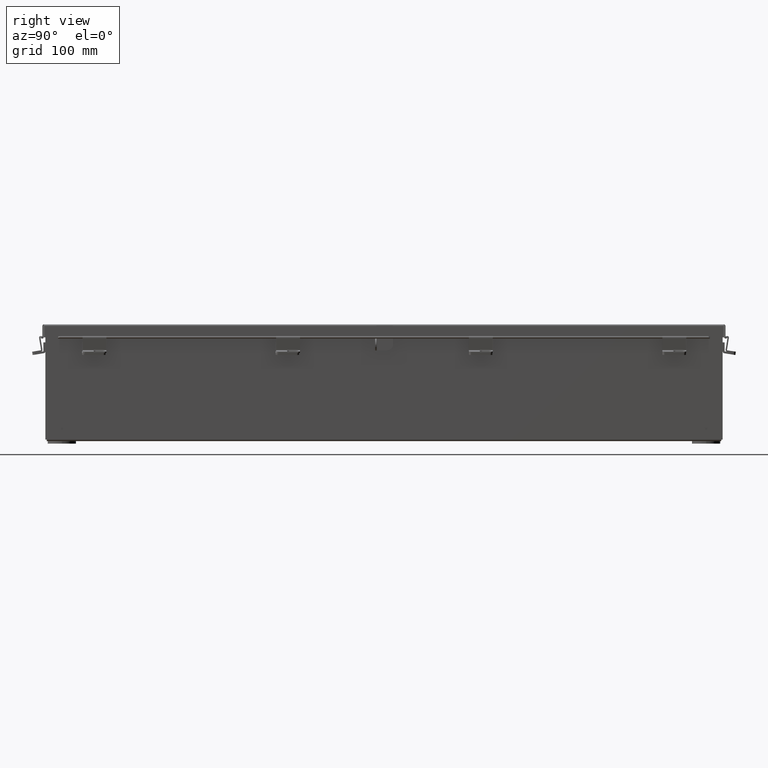
[diagram: clean part render]
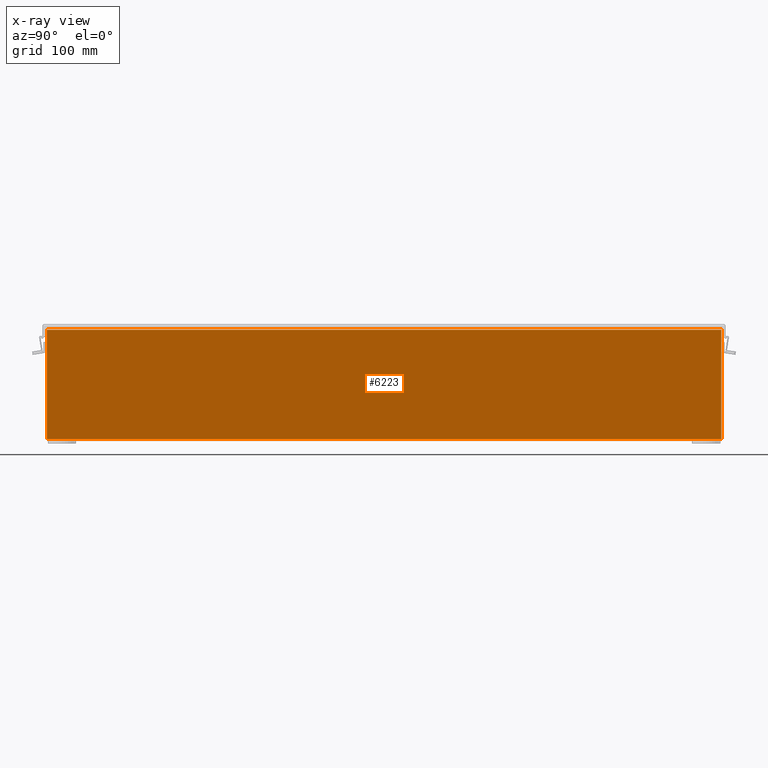
[diagram: x-ray — body ghosted, one internal face saturated and labeled with its STEP entity id]
A machine part, right view, then the same camera in x-ray: the body is ghosted and one INTERNAL B-rep face — a face not visible from any outside direction — is saturated and labeled: STEP entity #6223.
In plain terms, the highlighted planar face has unit normal (-1, 0, 0).
Its self-contained STEP definition (entity closure, byte-faithful):
#9 = LINE ( 'NONE', #21692, #17502 ) ;
#709 = CARTESIAN_POINT ( 'NONE',  ( 2.925300000000020900, -17.92530000000000000, 5.837599999999999200 ) ) ;
#749 = VECTOR ( 'NONE', #16234, 39.37007874015748100 ) ;
#1488 = ORIENTED_EDGE ( 'NONE', *, *, #14843, .F. ) ;
#2618 = DIRECTION ( 'NONE',  ( 3.455316574900958600E-015, 0.0000000000000000000, 1.000000000000000000 ) ) ;
#2880 = LINE ( 'NONE', #27496, #749 ) ;
#2903 = LINE ( 'NONE', #3478, #26402 ) ;
#3237 = FACE_OUTER_BOUND ( 'NONE', #18961, .T. ) ;
#3478 = CARTESIAN_POINT ( 'NONE',  ( 2.925300000000000500, -17.92530000000000000, 0.0000000000000000000 ) ) ;
#4875 = VECTOR ( 'NONE', #18885, 39.37007874015748100 ) ;
#5182 = CARTESIAN_POINT ( 'NONE',  ( 2.925300000000000500, -17.92530000000000000, 0.01300000000000011600 ) ) ;
#5594 = VERTEX_POINT ( 'NONE', #28921 ) ;
#6223 = ADVANCED_FACE ( 'NONE', ( #3237 ), #15206, .T. ) ;
#6832 = DIRECTION ( 'NONE',  ( -0.0000000000000000000, -1.000000000000000000, -0.0000000000000000000 ) ) ;
#8016 = VERTEX_POINT ( 'NONE', #709 ) ;
#10113 = DIRECTION ( 'NONE',  ( -1.000000000000000000, 0.0000000000000000000, 3.455316574900958600E-015 ) ) ;
#10180 = AXIS2_PLACEMENT_3D ( 'NONE', #11570, #10113, #2618 ) ;
#10617 = ORIENTED_EDGE ( 'NONE', *, *, #18014, .F. ) ;
#11570 = CARTESIAN_POINT ( 'NONE',  ( 2.925300000000000500, 0.0000000000000000000, -1.036394832596379800E-014 ) ) ;
#12534 = EDGE_CURVE ( 'NONE', #27805, #8016, #9, .T. ) ;
#12697 = ORIENTED_EDGE ( 'NONE', *, *, #27677, .F. ) ;
#14779 = CARTESIAN_POINT ( 'NONE',  ( 2.925300000000000500, -17.92530000000000000, 0.01299999999999972400 ) ) ;
#14843 = EDGE_CURVE ( 'NONE', #24213, #5594, #29058, .T. ) ;
#15206 = PLANE ( 'NONE',  #10180 ) ;
#16234 = DIRECTION ( 'NONE',  ( 3.455316574900958600E-015, -0.0000000000000000000, 1.000000000000000000 ) ) ;
#17502 = VECTOR ( 'NONE', #6832, 39.37007874015748100 ) ;
#17613 = ORIENTED_EDGE ( 'NONE', *, *, #12534, .F. ) ;
#18014 = EDGE_CURVE ( 'NONE', #8016, #24213, #2903, .T. ) ;
#18885 = DIRECTION ( 'NONE',  ( 2.106385868603161400E-031, 1.000000000000000000, 6.096072018129156600E-017 ) ) ;
#18961 = EDGE_LOOP ( 'NONE', ( #10617, #17613, #12697, #1488 ) ) ;
#19464 = DIRECTION ( 'NONE',  ( -3.455316574900958600E-015, -0.0000000000000000000, -1.000000000000000000 ) ) ;
#21692 = CARTESIAN_POINT ( 'NONE',  ( 2.925300000000020900, 17.92530000000000000, 5.837599999999999200 ) ) ;
#24213 = VERTEX_POINT ( 'NONE', #14779 ) ;
#25701 = CARTESIAN_POINT ( 'NONE',  ( 2.925300000000020900, 17.92530000000000000, 5.837599999999999200 ) ) ;
#26402 = VECTOR ( 'NONE', #19464, 39.37007874015748100 ) ;
#27496 = CARTESIAN_POINT ( 'NONE',  ( 2.925300000000020900, 17.92530000000000000, 5.850600000000000000 ) ) ;
#27677 = EDGE_CURVE ( 'NONE', #5594, #27805, #2880, .T. ) ;
#27805 = VERTEX_POINT ( 'NONE', #25701 ) ;
#28921 = CARTESIAN_POINT ( 'NONE',  ( 2.925300000000000500, 17.92530000000000000, 0.01300000000000267600 ) ) ;
#29058 = LINE ( 'NONE', #5182, #4875 ) ;